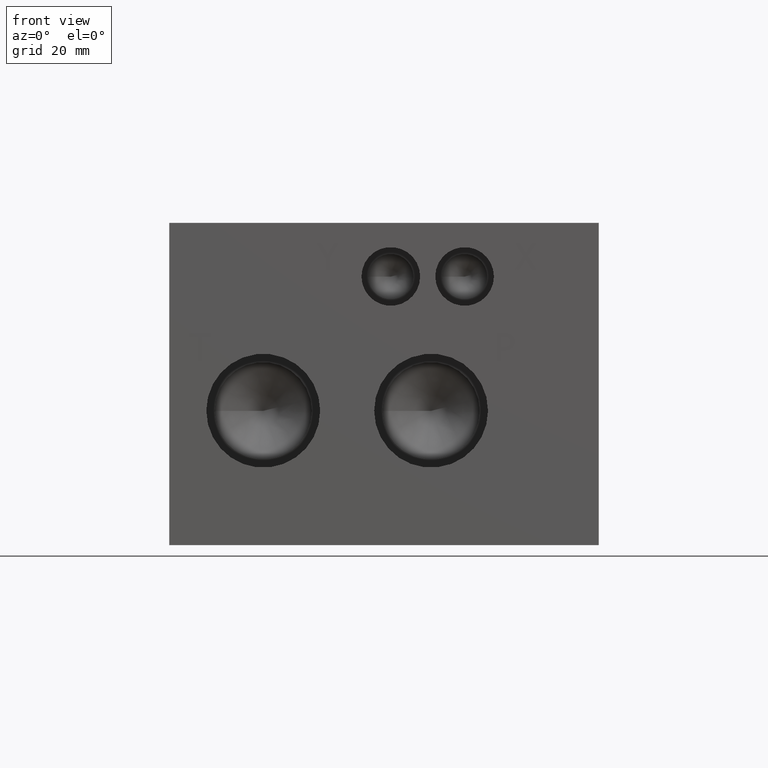
[diagram: clean part render]
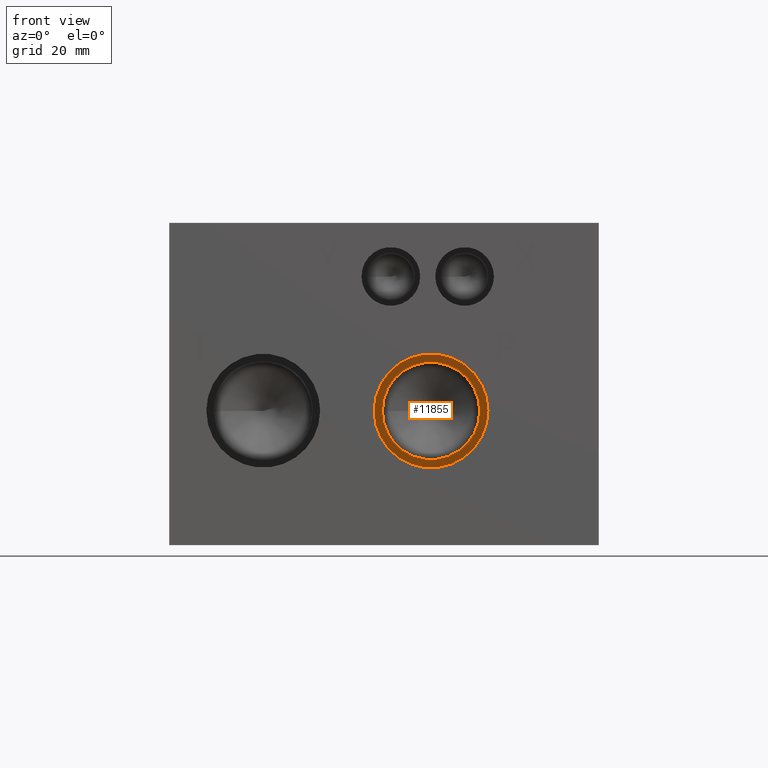
[diagram: same view with one face highlighted and labeled with its STEP entity id]
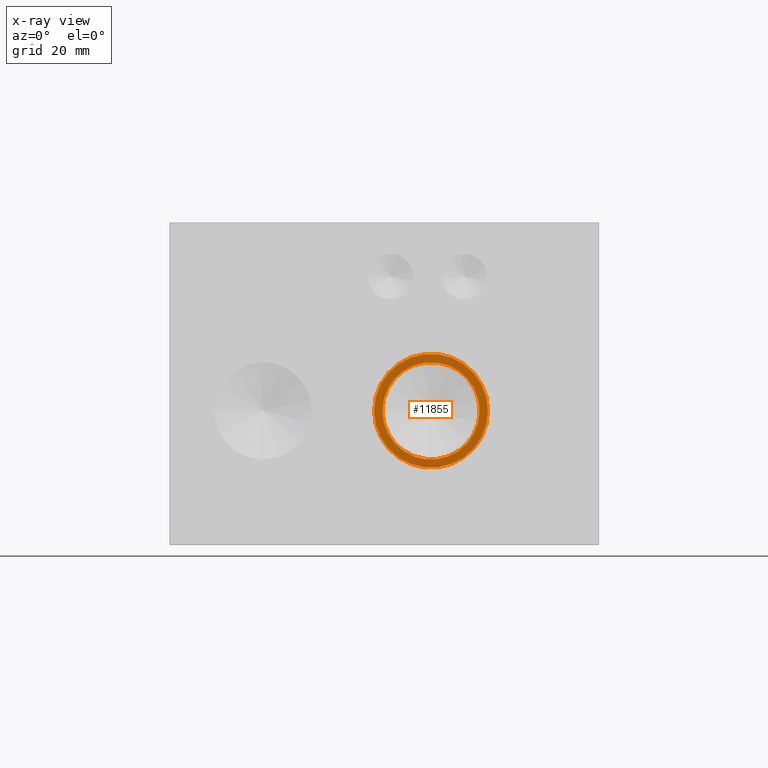
[diagram: x-ray of the same camera — body ghosted, the highlighted face saturated]
A machine part, front view. The second image highlights one B-rep face of the part: STEP entity #11855.
The next image is the same camera in x-ray: the body ghosted, the highlighted face saturated — about 0% of this face is hidden behind the body in this view.
In plain terms, the highlighted planar face has unit normal (0, -1, 0).
Its self-contained STEP definition (entity closure, byte-faithful):
#137=CIRCLE('',#12381,13.462);
#138=CIRCLE('',#12382,13.462);
#139=CIRCLE('',#12383,11.5062);
#322=FACE_BOUND('',#1927,.T.);
#723=PLANE('',#12380);
#1266=FACE_OUTER_BOUND('',#1926,.T.);
#1926=EDGE_LOOP('',(#10266,#10267));
#1927=EDGE_LOOP('',(#10268));
#5655=VERTEX_POINT('',#19786);
#5656=VERTEX_POINT('',#19787);
#5657=VERTEX_POINT('',#19790);
#7245=EDGE_CURVE('',#5655,#5656,#137,.T.);
#7246=EDGE_CURVE('',#5656,#5655,#138,.T.);
#7247=EDGE_CURVE('',#5657,#5657,#139,.T.);
#10266=ORIENTED_EDGE('',*,*,#7245,.T.);
#10267=ORIENTED_EDGE('',*,*,#7246,.T.);
#10268=ORIENTED_EDGE('',*,*,#7247,.F.);
#11855=ADVANCED_FACE('',(#1266,#322),#723,.T.);
#12380=AXIS2_PLACEMENT_3D('',#19785,#14573,#14574);
#12381=AXIS2_PLACEMENT_3D('',#19788,#14575,#14576);
#12382=AXIS2_PLACEMENT_3D('',#19789,#14577,#14578);
#12383=AXIS2_PLACEMENT_3D('',#19791,#14579,#14580);
#14573=DIRECTION('center_axis',(0.,-1.,0.));
#14574=DIRECTION('ref_axis',(1.,0.,0.));
#14575=DIRECTION('center_axis',(0.,-1.,0.));
#14576=DIRECTION('ref_axis',(1.,0.,0.));
#14577=DIRECTION('center_axis',(0.,-1.,0.));
#14578=DIRECTION('ref_axis',(1.,0.,0.));
#14579=DIRECTION('center_axis',(0.,-1.,0.));
#14580=DIRECTION('ref_axis',(1.,0.,0.));
#19785=CARTESIAN_POINT('Origin',(61.9252,15.8496,31.75));
#19786=CARTESIAN_POINT('',(75.3872,15.8496,31.75));
#19787=CARTESIAN_POINT('',(48.4632,15.8496,31.75));
#19788=CARTESIAN_POINT('Origin',(61.9252,15.8496,31.75));
#19789=CARTESIAN_POINT('Origin',(61.9252,15.8496,31.75));
#19790=CARTESIAN_POINT('',(50.419,15.8496,31.75));
#19791=CARTESIAN_POINT('Origin',(61.9252,15.8496,31.75));